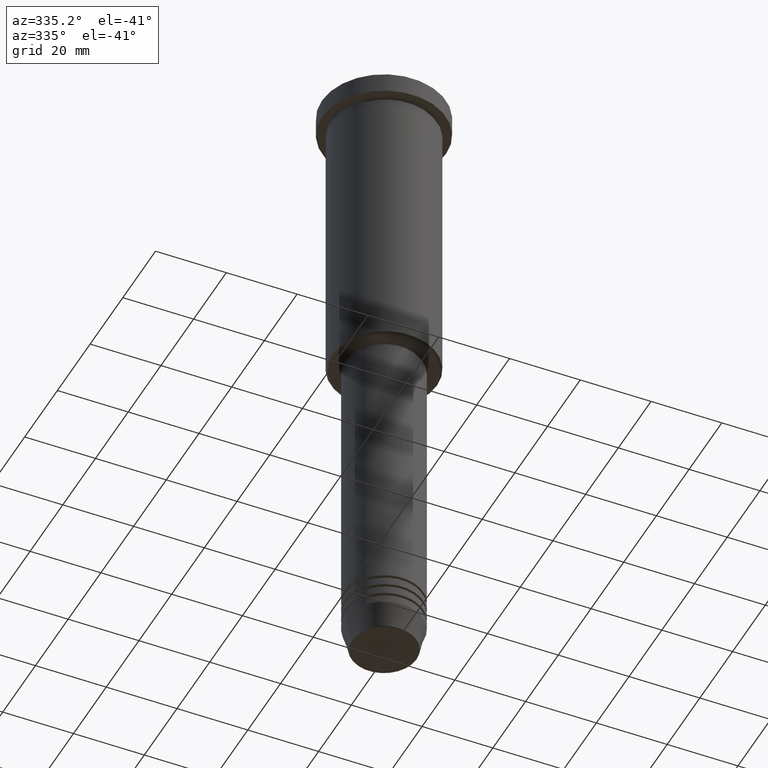
[diagram: clean part render]
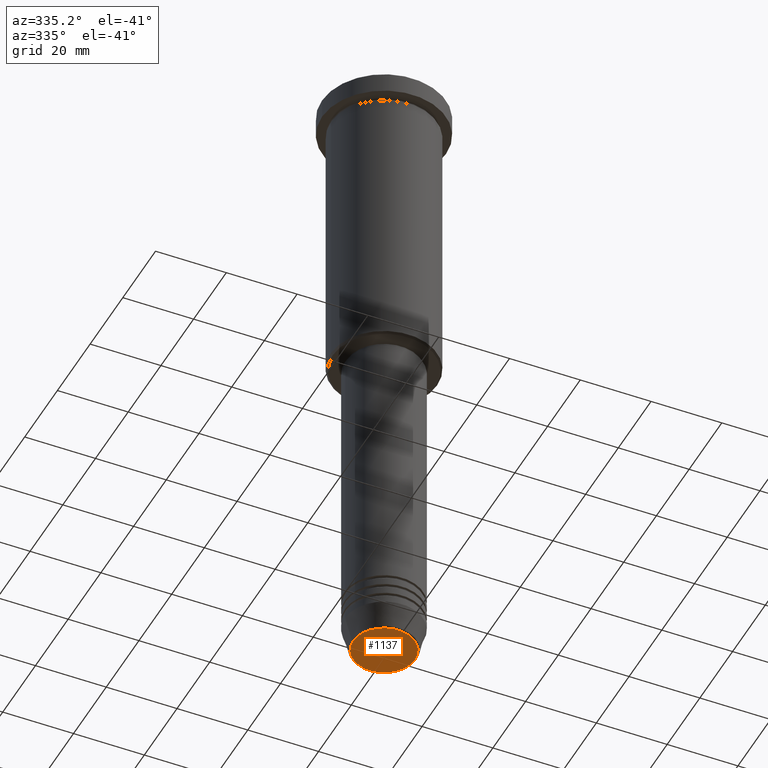
[diagram: same view with one face highlighted and labeled with its STEP entity id]
A machine part, auxiliary view. The second image highlights one B-rep face of the part: STEP entity #1137.
In plain terms, the highlighted planar face has unit normal (0, -0, 1).
Its self-contained STEP definition (entity closure, byte-faithful):
#26 = DIRECTION ( 'NONE',  ( 1.000000000000000000, 0.000000000000000000, 0.000000000000000000 ) ) ;
#43 = EDGE_CURVE ( 'NONE', #626, #565, #885, .T. ) ;
#63 = ORIENTED_EDGE ( 'NONE', *, *, #356, .T. ) ;
#116 = DIRECTION ( 'NONE',  ( 0.000000000000000000, -0.000000000000000000, 1.000000000000000000 ) ) ;
#338 = DIRECTION ( 'NONE',  ( 1.000000000000000000, 0.000000000000000000, 0.000000000000000000 ) ) ;
#356 = EDGE_CURVE ( 'NONE', #565, #626, #640, .T. ) ;
#492 = DIRECTION ( 'NONE',  ( 0.000000000000000000, 0.000000000000000000, -1.000000000000000000 ) ) ;
#495 = AXIS2_PLACEMENT_3D ( 'NONE', #822, #919, #624 ) ;
#557 = AXIS2_PLACEMENT_3D ( 'NONE', #936, #116, #26 ) ;
#564 = PLANE ( 'NONE',  #557 ) ;
#565 = VERTEX_POINT ( 'NONE', #1104 ) ;
#596 = AXIS2_PLACEMENT_3D ( 'NONE', #880, #492, #338 ) ;
#624 = DIRECTION ( 'NONE',  ( 1.000000000000000000, 0.000000000000000000, 0.000000000000000000 ) ) ;
#626 = VERTEX_POINT ( 'NONE', #833 ) ;
#640 = CIRCLE ( 'NONE', #596, 8.740692158992663607 ) ;
#751 = FACE_OUTER_BOUND ( 'NONE', #896, .T. ) ;
#822 = CARTESIAN_POINT ( 'NONE',  ( 0.000000000000000000, 0.000000000000000000, -181.0000000000000000 ) ) ;
#833 = CARTESIAN_POINT ( 'NONE',  ( 8.740692158992663607, 0.000000000000000000, -181.0000000000000000 ) ) ;
#880 = CARTESIAN_POINT ( 'NONE',  ( 0.000000000000000000, 0.000000000000000000, -181.0000000000000000 ) ) ;
#885 = CIRCLE ( 'NONE', #495, 8.740692158992663607 ) ;
#896 = EDGE_LOOP ( 'NONE', ( #1113, #63 ) ) ;
#919 = DIRECTION ( 'NONE',  ( 0.000000000000000000, 0.000000000000000000, -1.000000000000000000 ) ) ;
#936 = CARTESIAN_POINT ( 'NONE',  ( 0.000000000000000000, 0.000000000000000000, -181.0000000000000000 ) ) ;
#1104 = CARTESIAN_POINT ( 'NONE',  ( -8.740692158992663607, 1.099999016768740442E-15, -181.0000000000000000 ) ) ;
#1113 = ORIENTED_EDGE ( 'NONE', *, *, #43, .T. ) ;
#1137 = ADVANCED_FACE ( 'NONE', ( #751 ), #564, .F. ) ;